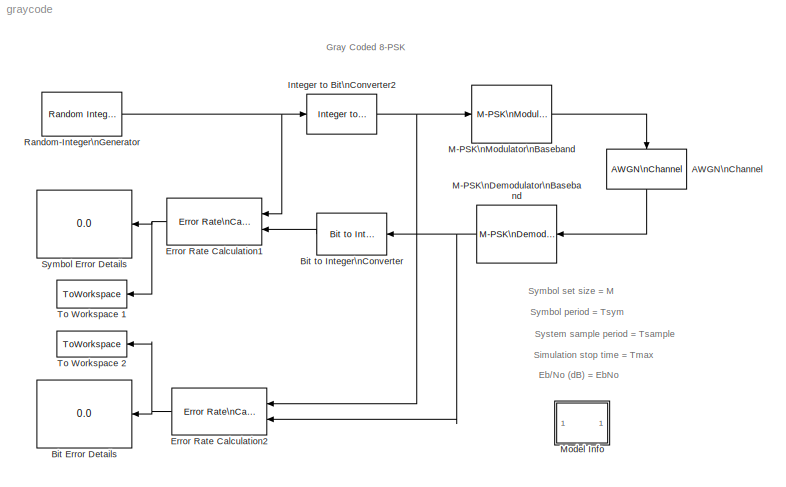
MODEL graycode
KIND model
CONFIG PreLoadFcn = EbNo=3;maxNumErrs=100;maxNumBits=1e8;M=8;Tsample=.01;Tsym=.2;
WORKSPACE source: external: M-Code  (data not in archive)
BLOCK [Reference] AWGN\nChannel  REF=commchan2/AWGN\nChannel
  EbNodB = EbNo
  EsNodB = EbNo+10*log10(log2(M))
  Ports = [1, 1]
  Ps = 1
  SNRdB = 10
  ShowPortLabels = on
  SourceBlock = commchan2/AWGN\nChannel
  SourceType = AWGN Channel
  Tsym = Tsym
  bitsPerSym = log2(M)
  noiseMode = Signal to noise ratio  (Eb/No)
  seed = 67
  variance = 1
BLOCK [Display] Bit Error Details
  Decimation = 1
  Ports = [1]
BLOCK [Reference] Bit to Integer\nConverter  REF=commutil2/Bit to Integer\nConverter
  Ports = [1, 1]
  SourceBlock = commutil2/Bit to Integer\nConverter
  SourceType = Bit to Integer Converter
  nbits = log2(M)
BLOCK [Reference] Error Rate Calculation1  REF=commsink2/Error Rate\nCalculation
  N = 0
  PMode = Port
  Ports = [2, 1]
  RsMode2 = off
  SourceBlock = commsink2/Error Rate\nCalculation
  SourceType = Error Rate Calculation
  WsName = SymErrorVec
  cp_mode = Entire frame
  maxBits = 1e6
  numErr = 100
  st_delay = 0
  stop = off
  subframe = []
BLOCK [Reference] Error Rate Calculation2  REF=commsink2/Error Rate\nCalculation
  N = 0
  PMode = Port
  Ports = [2, 1]
  RsMode2 = off
  SourceBlock = commsink2/Error Rate\nCalculation
  SourceType = Error Rate Calculation
  WsName = BitErrorVec
  cp_mode = Entire frame
  maxBits = maxNumBits
  numErr = maxNumErrs
  st_delay = 0
  stop = on
  subframe = []
BLOCK [Reference] Integer to Bit\nConverter2  REF=commutil2/Integer to Bit\nConverter
  Ports = [1, 1]
  SourceBlock = commutil2/Integer to Bit\nConverter
  SourceType = Integer to Bit Converter
  nbits = log2(M)
BLOCK [Reference] M-PSK\nDemodulator\nBaseband  REF=commdigbbndpm2/M-PSK\nDemodulator\nBaseband
  Dec = Gray
  M = M
  OutType = Bit
  Ph = 0
  Ports = [1, 1]
  SourceBlock = commdigbbndpm2/M-PSK\nDemodulator\nBaseband
  SourceType = M-PSK Demodulator Baseband
  numSamp = 1
BLOCK [Reference] M-PSK\nModulator\nBaseband  REF=commdigbbndpm2/M-PSK\nModulator\nBaseband
  Enc = Gray
  InType = Bit
  M = M
  Ph = 0
  Ports = [1, 1]
  SourceBlock = commdigbbndpm2/M-PSK\nModulator\nBaseband
  SourceType = M-PSK Modulator Baseband
  numSamp = 1
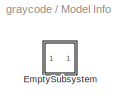
BLOCK [SubSystem] Model Info
  CopyFcn = slcm CopyBlock;
  DeleteFcn = slcm Cancel;
  EnableExecutionContextPropagation = on
  InitFcn = slcm('UpdateAllCMBlocksInThisModelInit')
  LoadFcn = slcm LoadBlock;
  MaskCallbackString = ||||||||||||||||||||||||||||||
  MaskDescription = This block allows revision control information to be displayed within the model.
  MaskDisplay = text(str2num(LeftAlignmentValue), 0.5, MaskDisplayString, 'HorizontalAlignment', HorizontalTextAlignment)\n
  MaskEnableString = on,on,on,on,on,on,on,on,on,on,on,on,on,on,on,on,on,on,on,on,on,on,on,on,on,on,on,on,on,on,on
  MaskIconFrame = on
  MaskIconOpaque = on
  MaskIconRotate = none
  MaskIconUnits = normalized
  MaskPromptString = InitialSaveTempField|InitialBlockCM|BlockCM|Frame|SaveTempField|DisplayStringWithTags|MaskDisplayString|HorizontalTextAlignment|LeftAlignmentValue|SourceBlockDiagram|TagMaxNumber|CMTag1|CMTag2|CMTag3|CMTag4|CMTag5|CMTag6|CMTag7|CMTag8|CMTag9|CMTag10|CMTag11|CMTag12|CMTag13|CMTag14|CMTag15|CMTag16|CMTag17|CMTag18|CMTag19|CMTag20
  MaskSelfModifiable = on
  MaskStyleString = edit,edit,edit,edit,edit,edit,edit,edit,edit,edit,edit,edit,edit,edit,edit,edit,edit,edit,edit,edit,edit,edit,edit,edit,edit,edit,edit,edit,edit,edit,edit
  MaskTabNameString = ,,,,,,,,,,,,,,,,,,,,,,,,,,,,,,
  MaskToolTipString = on,on,on,on,on,on,on,on,on,on,on,on,on,on,on,on,on,on,on,on,on,on,on,on,on,on,on,on,on,on,on
  MaskTunableValueString = on,on,on,on,on,on,on,on,on,on,on,on,on,on,on,on,on,on,on,on,on,on,on,on,on,on,on,on,on,on,on
  MaskType = CMBlock
  MaskValueString = |none|none|on||Info|Info|Center|0.5|graycode|20||||||||||||||||||||
  MaskVarAliasString = ,,,,,,,,,,,,,,,,,,,,,,,,,,,,,,
  MaskVariables = InitialSaveTempField=&1;InitialBlockCM=&2;BlockCM=&3;Frame=&4;SaveTempField=&5;DisplayStringWithTags=&6;MaskDisplayString=&7;HorizontalTextAlignment=&8;LeftAlignmentValue=&9;SourceBlockDiagram=&10;TagMaxNumber=@11;CMTag1=&12;CMTag2=&13;CMTag3=&14;CMTag4=&15;CMTag5=&16;CMTag6=&17;CMTag7=&18;CMTag8=&19;CMTag9=&20;CMTag10=&21;CMTag11=&22;CMTag12=&23;CMTag13=&24;CMTag14=&25;CMTag15=&26;CMTag16=&27;CMT...<+45ch>
  MaskVisibilityString = off,off,off,off,off,off,off,off,off,off,off,off,off,off,off,off,off,off,off,off,off,off,off,off,off,off,off,off,off,off,off
  MinAlgLoopOccurrences = off
  NameChangeFcn = slcm Rename;
  OpenFcn = commdemohelp;
  Ports = []
  PostSaveFcn = slcm('UpdateAllCMBlocksInThisModel')
  TreatAsAtomicUnit = off
BLOCK [SubSystem] Model Info/EmptySubsystem
  EnableExecutionContextPropagation = on
  MinAlgLoopOccurrences = off
  Ports = []
  TreatAsAtomicUnit = off
BLOCK [Reference] Random-Integer\nGenerator  REF=commrandsrc2/Random Integer\nGenerator
  Ports = [0, 1]
  ShowPortLabels = on
  SourceBlock = commrandsrc2/Random Integer\nGenerator
  SourceType = Random Integer Generator
  Ts = Tsym
  frameBased = on
  mul = M
  orient = off
  sampPerFrame = 100
  seed = 529558
BLOCK [Display] Symbol Error Details
  Decimation = 1
  Ports = [1]
BLOCK [ToWorkspace] To Workspace 1
  MaxDataPoints = 1
  SampleTime = -1
  SaveFormat = Array
  VariableName = graySER
BLOCK [ToWorkspace] To Workspace 2
  MaxDataPoints = 1
  SampleTime = -1
  SaveFormat = Array
  VariableName = grayBER
ANNOTATION (root): Eb/No (dB) = EbNo
ANNOTATION (root): Gray Coded 8-PSK
ANNOTATION (root): Simulation stop time = Tmax
ANNOTATION (root): Symbol period = Tsym
ANNOTATION (root): Symbol set size = M
ANNOTATION (root): System sample period = Tsample
LINE AWGN\nChannel:1 -> M-PSK\nDemodulator\nBaseband:1
LINE Bit to Integer\nConverter:1 -> Error Rate Calculation1:2
NET Error Rate Calculation1:1 -> Symbol Error Details:1, To Workspace 1:1
NET Error Rate Calculation2:1 -> Bit Error Details:1, To Workspace 2:1
NET Integer to Bit\nConverter2:1 -> Error Rate Calculation2:1, M-PSK\nModulator\nBaseband:1
NET M-PSK\nDemodulator\nBaseband:1 -> Bit to Integer\nConverter:1, Error Rate Calculation2:2
LINE M-PSK\nModulator\nBaseband:1 -> AWGN\nChannel:1
NET Random-Integer\nGenerator:1 -> Error Rate Calculation1:1, Integer to Bit\nConverter2:1
note: NET lines group one-source signal fan-out (src -> all destinations, sorted); 1:1 wires keep LINE
